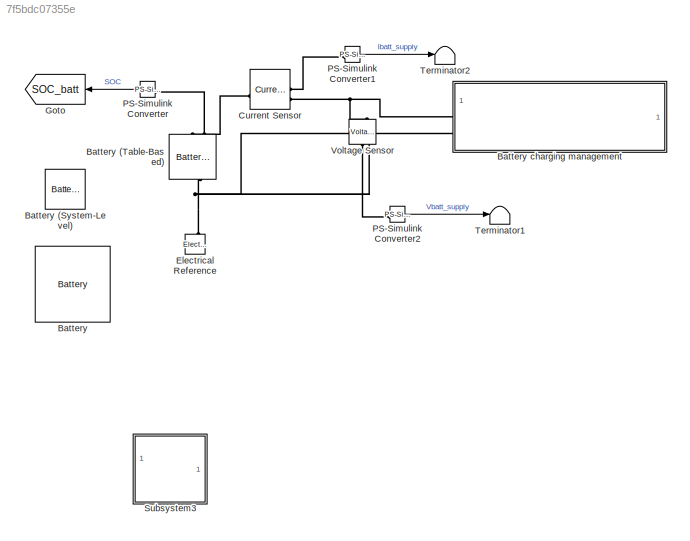
MODEL slx_7f5bdc07355e
KIND model
CONFIG AbsTol = auto
CONFIG EnableMultiTasking = off
CONFIG FixedStep = auto
CONFIG MaxStep = auto
CONFIG MinStep = auto
CONFIG RelTol = 1e-3
CONFIG SampleTimeConstraint = Unconstrained
CONFIG SolverName = VariableStepAuto
CONFIG StartTime = 0.0
CONFIG StopTime = 10.0
BLOCK [Reference] Battery  REF=spsBatteryLib/Battery
  LibrarySourceBlock = sps_lib/Sources/Battery
  SourceBlock = spsBatteryLib/Battery
  SourceType = Battery
BLOCK [Reference] Battery (System-Level)  REF=sdl_lib/Sources/Battery
(System-Level)
  NameLocation = right
  SourceBlock = sdl_lib/Sources/Battery\n(System-Level)
  SourceType = Battery\n(System-Level)
BLOCK [Reference] Battery (Table-Based)  REF=batteryecm_lib/Battery
(Table-Based)
  AttributesFormatString = A123:ALM12V7
  NameLocation = right
  SourceBlock = batteryecm_lib/Battery\n(Table-Based)
  SourceType = Battery\n(Table-Based)
  Tag = {'toolbox/physmod/battery/shared_library/m/batteryecm_lib_parts';'Battery__Table_Based_/A123/ALM12V7.xml'}
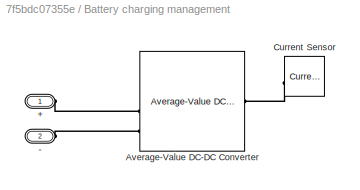
BLOCK [SubSystem] Battery charging management
BLOCK [PMIOPort] Battery charging management/+
  Side = Left
BLOCK [PMIOPort] Battery charging management/-
  Port = 2
  Side = Left
BLOCK [Reference] Battery charging management/Average-Value DC-DC Converter  REF=ee_lib/Semiconductors &
Converters/Converters/Average-Value DC-DC
Converter
  SourceBlock = ee_lib/Semiconductors &\nConverters/Converters/Average-Value DC-DC\nConverter
  SourceType = Average-Value DC-DC\nConverter
BLOCK [Reference] Battery charging management/Current Sensor  REF=fl_lib/Electrical/Electrical Sensors/Current Sensor
  SourceBlock = fl_lib/Electrical/Electrical Sensors/Current Sensor
  SourceType = Current Sensor
BLOCK [Reference] Current Sensor  REF=fl_lib/Electrical/Electrical Sensors/Current Sensor
  SourceBlock = fl_lib/Electrical/Electrical Sensors/Current Sensor
  SourceType = Current Sensor
BLOCK [Reference] Electrical Reference  REF=fl_lib/Electrical/Electrical Elements/Electrical Reference
  NameLocation = right
  SourceBlock = fl_lib/Electrical/Electrical Elements/Electrical Reference
  SourceType = Electrical Reference
BLOCK [Goto] Goto
  GotoTag = SOC_batt
  NameLocation = top
  TagVisibility = global
BLOCK [Reference] PS-Simulink Converter  REF=nesl_utility/PS-Simulink
Converter
  NameLocation = top
  SourceBlock = nesl_utility/PS-Simulink\nConverter
  SourceType = PS-Simulink\nConverter
BLOCK [Reference] PS-Simulink Converter1  REF=nesl_utility/PS-Simulink
Converter
  SourceBlock = nesl_utility/PS-Simulink\nConverter
  SourceType = PS-Simulink\nConverter
BLOCK [Reference] PS-Simulink Converter2  REF=nesl_utility/PS-Simulink
Converter
  SourceBlock = nesl_utility/PS-Simulink\nConverter
  SourceType = PS-Simulink\nConverter
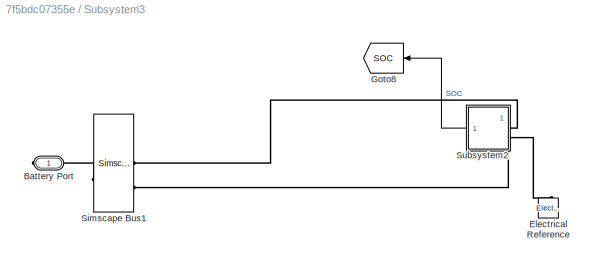
BLOCK [SubSystem] Subsystem3
  NameLocation = top
BLOCK [PMIOPort] Subsystem3/Battery Port
  Side = Right
BLOCK [Reference] Subsystem3/Electrical Reference  REF=fl_lib/Electrical/Electrical Elements/Electrical Reference
  NameLocation = right
  SourceBlock = fl_lib/Electrical/Electrical Elements/Electrical Reference
  SourceType = Electrical Reference
BLOCK [Goto] Subsystem3/Goto8
  GotoTag = SOC
  NameLocation = top
  TagVisibility = global
BLOCK [SimscapeBus] Subsystem3/Simscape Bus1
  HierarchyStrings = High;Low
  NameLocation = top
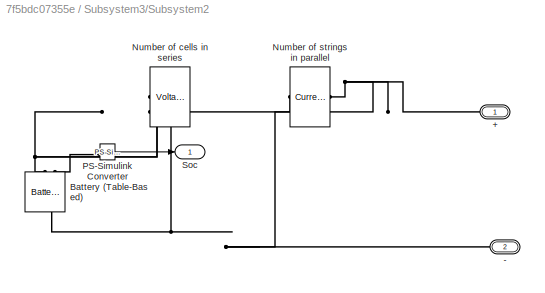
BLOCK [SubSystem] Subsystem3/Subsystem2
BLOCK [PMIOPort] Subsystem3/Subsystem2/+
  NameLocation = top
  Side = Left
BLOCK [PMIOPort] Subsystem3/Subsystem2/-
  NameLocation = top
  Port = 2
  Side = Left
BLOCK [Reference] Subsystem3/Subsystem2/Battery (Table-Based)  REF=batteryecm_lib/Battery
(Table-Based)
  AttributesFormatString = Panasonic:NCR18650PF
  NameLocation = right
  SourceBlock = batteryecm_lib/Battery\n(Table-Based)
  SourceType = Battery\n(Table-Based)
  Tag = {'toolbox/physmod/battery/shared_library/m/batteryecm_lib_parts';'Battery__Table_Based_/Panasonic/NCR18650PF.xml'}
BLOCK [Reference] Subsystem3/Subsystem2/Number of cells in series  REF=fl_lib/Electrical/Electrical Sources/Voltage-Controlled
Voltage Source
  NameLocation = top
  SourceBlock = fl_lib/Electrical/Electrical Sources/Voltage-Controlled\nVoltage Source
  SourceType = Voltage-Controlled\nVoltage Source
BLOCK [Reference] Subsystem3/Subsystem2/Number of strings in parallel  REF=fl_lib/Electrical/Electrical Sources/Current-Controlled
Current Source
  NameLocation = top
  SourceBlock = fl_lib/Electrical/Electrical Sources/Current-Controlled\nCurrent Source
  SourceType = Current-Controlled\nCurrent Source
BLOCK [Reference] Subsystem3/Subsystem2/PS-Simulink Converter  REF=nesl_utility/PS-Simulink
Converter
  SourceBlock = nesl_utility/PS-Simulink\nConverter
  SourceType = PS-Simulink\nConverter
BLOCK [Outport] Subsystem3/Subsystem2/Soc
BLOCK [Terminator] Terminator1
BLOCK [Terminator] Terminator2
BLOCK [Reference] Voltage Sensor  REF=fl_lib/Electrical/Electrical Sensors/Voltage Sensor
  NameLocation = right
  SourceBlock = fl_lib/Electrical/Electrical Sensors/Voltage Sensor
  SourceType = Voltage Sensor
LINE PS-Simulink Converter1:1 -> Terminator2:1
LINE PS-Simulink Converter2:1 -> Terminator1:1
LINE PS-Simulink Converter:1 -> Goto:1
LINE Subsystem3/Subsystem2/PS-Simulink Converter:1 -> Subsystem3/Subsystem2/Soc:1
LINE Subsystem3/Subsystem2:1 -> Subsystem3/Goto8:1
PLINE Battery (Table-Based):LConn1 -- Current Sensor:LConn1
PLINE Battery (Table-Based):LConn2 -- PS-Simulink Converter:LConn1
PNET net1: Battery (Table-Based):RConn1 -- Battery charging management:LConn2 -- Electrical Reference:LConn1 -- Voltage Sensor:RConn2
PLINE Battery charging management/+:RConn1 -- Battery charging management/Average-Value DC-DC Converter:LConn2
PLINE Battery charging management/-:RConn1 -- Battery charging management/Average-Value DC-DC Converter:LConn3
PLINE Battery charging management/Average-Value DC-DC Converter:RConn1 -- Battery charging management/Current Sensor:LConn1
PNET net2: Battery charging management:LConn1 -- Current Sensor:RConn2 -- Voltage Sensor:LConn1
PLINE Current Sensor:RConn1 -- PS-Simulink Converter1:LConn1
PLINE PS-Simulink Converter2:LConn1 -- Voltage Sensor:RConn1
PLINE Subsystem3/Battery Port:RConn1 -- Subsystem3/Simscape Bus1:RConn1
PNET net3: Subsystem3/Electrical Reference:LConn1 -- Subsystem3/Simscape Bus1:LConn2 -- Subsystem3/Subsystem2:LConn2
PLINE Subsystem3/Simscape Bus1:LConn1 -- Subsystem3/Subsystem2:LConn1
PNET net4: Subsystem3/Subsystem2/+:RConn1 -- Subsystem3/Subsystem2/Number of strings in parallel:RConn1 -- Subsystem3/Subsystem2/Number of strings in parallel:RConn2
PNET net5: Subsystem3/Subsystem2/-:RConn1 -- Subsystem3/Subsystem2/Battery (Table-Based):RConn1 -- Subsystem3/Subsystem2/Number of cells in series:LConn1 -- Subsystem3/Subsystem2/Number of strings in parallel:LConn2
PNET net6: Subsystem3/Subsystem2/Battery (Table-Based):LConn1 -- Subsystem3/Subsystem2/Number of cells in series:RConn1 -- Subsystem3/Subsystem2/Number of cells in series:RConn2
PLINE Subsystem3/Subsystem2/Battery (Table-Based):LConn2 -- Subsystem3/Subsystem2/PS-Simulink Converter:LConn1
PLINE Subsystem3/Subsystem2/Number of cells in series:LConn2 -- Subsystem3/Subsystem2/Number of strings in parallel:LConn1
note: PNET lines group multi-terminal physical nets as a canonical sorted terminal list (undirected conserving connections); 2-terminal nets keep the pairwise PLINE form
